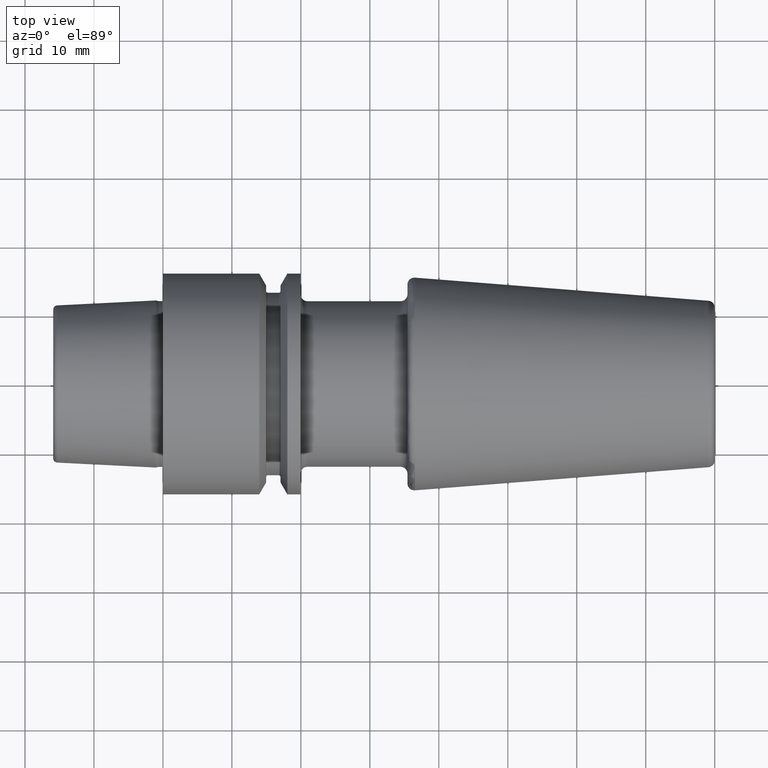
[diagram: clean part render]
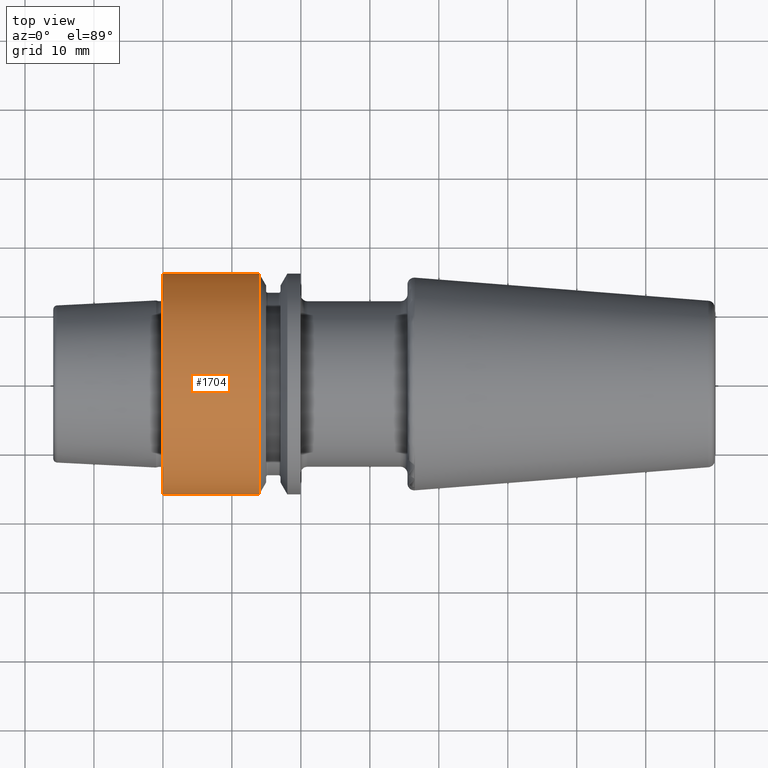
[diagram: same view with one face highlighted and labeled with its STEP entity id]
A machine part, top view. The second image highlights one B-rep face of the part: STEP entity #1704.
In plain terms, the highlighted cylindrical surface (partial cylindrical patch) has radius 16 mm, axis along (1, 0, 0).
Its self-contained STEP definition (entity closure, byte-faithful):
#452=CARTESIAN_POINT('',(0.E0,0.E0,0.E0));
#453=DIRECTION('',(1.E0,0.E0,0.E0));
#454=DIRECTION('',(0.E0,1.E0,0.E0));
#455=AXIS2_PLACEMENT_3D('',#452,#453,#454);
#482=CARTESIAN_POINT('',(1.396484030111E1,0.E0,0.E0));
#483=DIRECTION('',(1.E0,0.E0,0.E0));
#484=DIRECTION('',(0.E0,1.E0,0.E0));
#485=AXIS2_PLACEMENT_3D('',#482,#483,#484);
#614=DIRECTION('',(-1.E0,0.E0,0.E0));
#615=VECTOR('',#614,1.396484030111E1);
#616=CARTESIAN_POINT('',(1.396484030111E1,1.6E1,0.E0));
#617=LINE('',#616,#615);
#618=DIRECTION('',(-1.E0,0.E0,0.E0));
#619=VECTOR('',#618,1.396484030111E1);
#620=CARTESIAN_POINT('',(1.396484030111E1,-1.6E1,0.E0));
#621=LINE('',#620,#619);
#852=CARTESIAN_POINT('',(1.396484030111E1,1.6E1,0.E0));
#853=VERTEX_POINT('',#852);
#856=CARTESIAN_POINT('',(1.396484030111E1,-1.6E1,0.E0));
#857=VERTEX_POINT('',#856);
#862=CARTESIAN_POINT('',(0.E0,1.6E1,0.E0));
#863=CARTESIAN_POINT('',(0.E0,-1.6E1,0.E0));
#864=VERTEX_POINT('',#862);
#865=VERTEX_POINT('',#863);
#1690=CARTESIAN_POINT('',(-1.76925E1,0.E0,0.E0));
#1691=DIRECTION('',(1.E0,0.E0,0.E0));
#1692=DIRECTION('',(0.E0,-1.E0,0.E0));
#1693=AXIS2_PLACEMENT_3D('',#1690,#1691,#1692);
#1694=CYLINDRICAL_SURFACE('',#1693,1.6E1);
#1696=ORIENTED_EDGE('',*,*,#1695,.T.);
#1698=ORIENTED_EDGE('',*,*,#1697,.T.);
#1699=ORIENTED_EDGE('',*,*,#1663,.F.);
#1701=ORIENTED_EDGE('',*,*,#1700,.F.);
#1702=EDGE_LOOP('',(#1696,#1698,#1699,#1701));
#1703=FACE_OUTER_BOUND('',#1702,.F.);
#1704=ADVANCED_FACE('',(#1703),#1694,.T.);
#456=CIRCLE('',#455,1.6E1);
#486=CIRCLE('',#485,1.6E1);
#1663=EDGE_CURVE('',#864,#865,#456,.T.);
#1695=EDGE_CURVE('',#853,#857,#486,.T.);
#1697=EDGE_CURVE('',#857,#865,#621,.T.);
#1700=EDGE_CURVE('',#853,#864,#617,.T.);